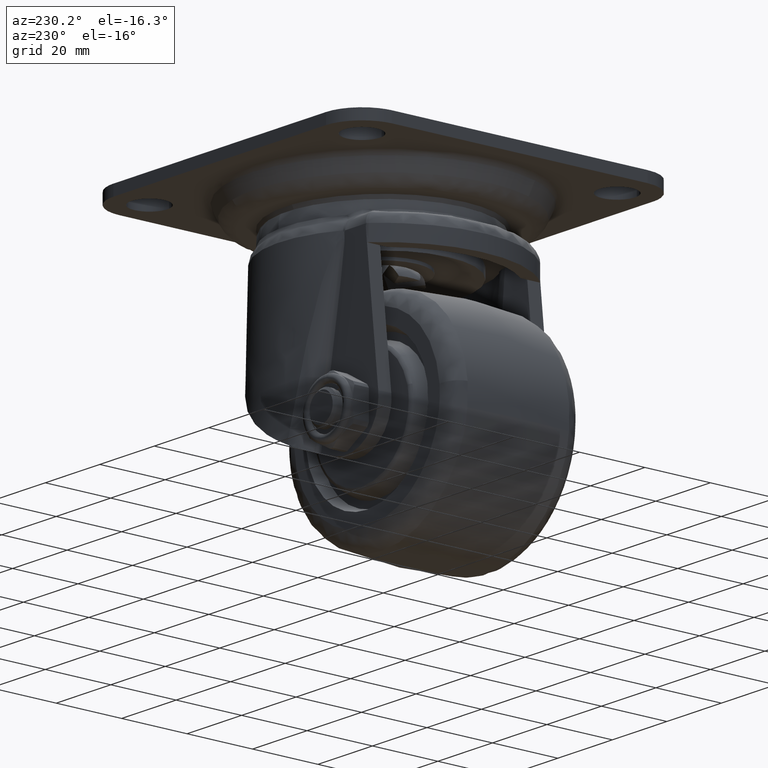
[diagram: clean part render]
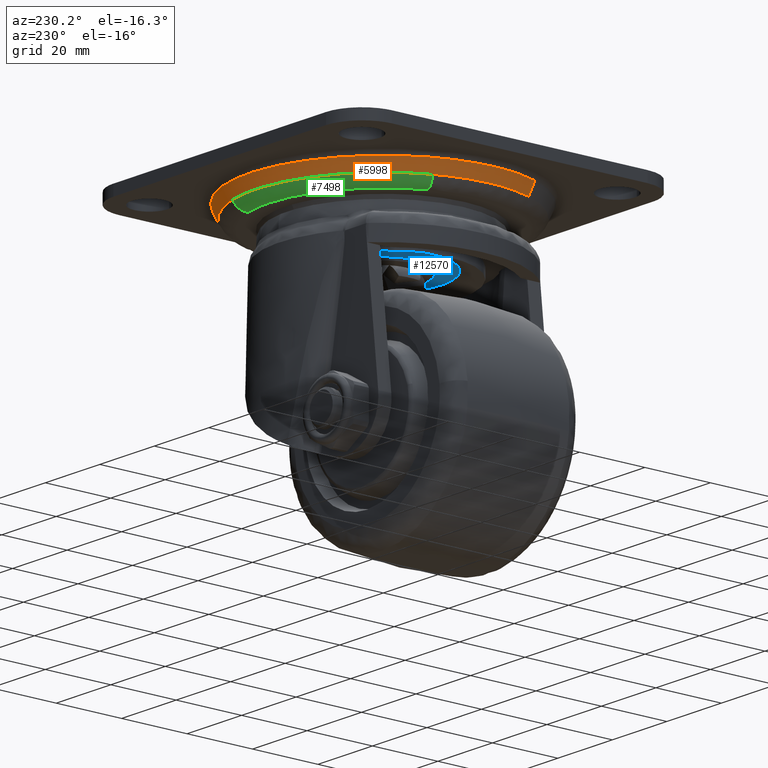
[diagram: same view with three faces highlighted in distinct colors, each labeled with its STEP entity id]
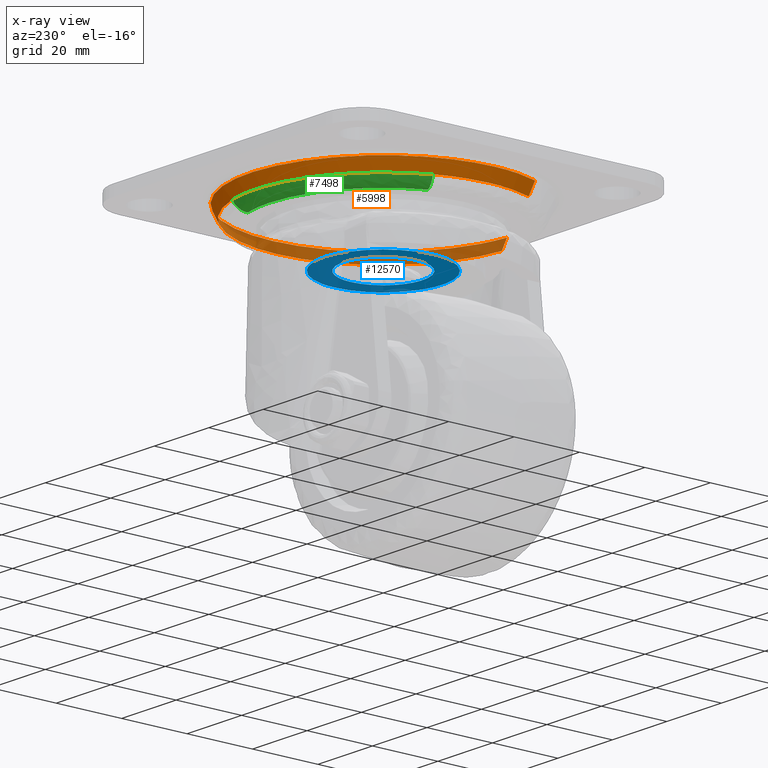
[diagram: x-ray of the same camera — body ghosted, the three highlighted faces saturated]
A machine part, auxiliary view with three faces highlighted in distinct colors.
The next image is the same camera in x-ray (body ghosted, the three faces saturated) — at least one of them is partly hidden behind the body in this view.
Their STEP definitions:

[orange] entity #5998 — the highlighted face is a freeform B-spline surface patch.
#5767=CARTESIAN_POINT('',(3.049689123807571,-38.749974387988630,-7.978875999988684));
#5768=VERTEX_POINT('',#5767);
#5769=CARTESIAN_POINT('',(-36.143641234190163,-14.300290806677619,-7.978875999995367));
#5770=VERTEX_POINT('',#5769);
#5786=CARTESIAN_POINT('',(3.184360529721399,-40.461136844316677,-4.345675039741233));
#5787=VERTEX_POINT('',#5786);
#5788=CARTESIAN_POINT('',(3.049689123807571,-38.749974387988630,-7.978875999988684));
#5789=CARTESIAN_POINT('',(3.184360529721399,-40.461136844316677,-4.345675039741233));
#5790=QUASI_UNIFORM_CURVE('',1,(#5788,#5789),.UNSPECIFIED.,.F.,.U.);
#5791=EDGE_CURVE('',#5768,#5787,#5790,.T.);
#5793=CARTESIAN_POINT('',(-37.739710467579357,-14.931778210949810,-4.345675039742618));
#5794=VERTEX_POINT('',#5793);
#5810=CARTESIAN_POINT('',(-36.143641234190163,-14.300290806677619,-7.978875999995367));
#5811=CARTESIAN_POINT('',(-37.739710467579357,-14.931778210949810,-4.345675039742618));
#5812=QUASI_UNIFORM_CURVE('',1,(#5810,#5811),.UNSPECIFIED.,.F.,.U.);
#5813=EDGE_CURVE('',#5770,#5794,#5812,.T.);
#5818=CARTESIAN_POINT('',(3.046322309503608,-38.707194956929378,-8.069706808861691));
#5819=CARTESIAN_POINT('',(41.753517266432993,-35.660872647425762,-8.069706808861691));
#5820=CARTESIAN_POINT('',(38.707194956929378,3.046322309503608,-8.069706808861691));
#5821=CARTESIAN_POINT('',(35.660872647425762,41.753517266432993,-8.069706808861691));
#5822=CARTESIAN_POINT('',(-3.046322309503608,38.707194956929378,-8.069706808861691));
#5823=CARTESIAN_POINT('',(-41.753517266432993,35.660872647425762,-8.069706808861691));
#5824=CARTESIAN_POINT('',(-38.707194956929378,-3.046322309503608,-8.069706808861691));
#5825=CARTESIAN_POINT('',(-38.249573053950812,-8.860959900507048,-8.069706808861691));
#5826=CARTESIAN_POINT('',(-36.103739158576715,-14.284503485125832,-8.069706808861689));
#5827=CARTESIAN_POINT('',(3.187811485290677,-40.504985392432502,-4.252574243537753));
#5828=CARTESIAN_POINT('',(43.692796877723175,-37.317173907141829,-4.252574243537753));
#5829=CARTESIAN_POINT('',(40.504985392432502,3.187811485290677,-4.252574243537753));
#5830=CARTESIAN_POINT('',(37.317173907141829,43.692796877723175,-4.252574243537753));
#5831=CARTESIAN_POINT('',(-3.187811485290677,40.504985392432502,-4.252574243537753));
#5832=CARTESIAN_POINT('',(-43.692796877723175,37.317173907141829,-4.252574243537753));
#5833=CARTESIAN_POINT('',(-40.504985392432502,-3.187811485290677,-4.252574243537753));
#5834=CARTESIAN_POINT('',(-40.026108829146793,-9.272515141754420,-4.252574243537752));
#5835=CARTESIAN_POINT('',(-37.780609751173586,-14.947960079437188,-4.252574243537753));
#5843=(BOUNDED_SURFACE()B_SPLINE_SURFACE(2,1,((#5818,#5827),(#5819,#5828),(#5820,#5829),(#5821,#5830),(#5822,#5831),(#5823,#5832),(#5824,#5833),(#5825,#5834),(#5826,#5835)),.UNSPECIFIED.,.F.,.F.,.U.)B_SPLINE_SURFACE_WITH_KNOTS((3,2,2,2,3),(2,2),(0.0,67.318377263810277,134.636754527620610,201.955131791430800,215.418807244192890),(0.0,4.221678654055508),.UNSPECIFIED.)GEOMETRIC_REPRESENTATION_ITEM()RATIONAL_B_SPLINE_SURFACE(((1.0,1.0),(0.707106781186548,0.707106781186548),(1.0,1.0),(0.707106781186548,0.707106781186548),(1.0,1.0),(0.707106781186548,0.707106781186548),(1.0,1.0),(0.941421356237310,0.941421356237310),(0.906274169979695,0.906274169979695)))REPRESENTATION_ITEM('')SURFACE());
#5844=CARTESIAN_POINT('',(-38.869797000000197,0.0,-7.978876000000199));
#5845=VERTEX_POINT('',#5844);
#5846=CARTESIAN_POINT('',(-36.143641234190149,-14.300290806677621,-7.978875999995367));
#5847=CARTESIAN_POINT('',(-38.869797000000197,-7.409997645519417,-7.978876000000200));
#5848=CARTESIAN_POINT('',(-38.869797000000197,0.0,-7.978876000000199));
#5856=(BOUNDED_CURVE()B_SPLINE_CURVE(2,(#5846,#5847,#5848),.UNSPECIFIED.,.F.,.U.)B_SPLINE_CURVE_WITH_KNOTS((3,3),(0.937532549939221,1.0),.UNSPECIFIED.)CURVE()GEOMETRIC_REPRESENTATION_ITEM()RATIONAL_B_SPLINE_CURVE((0.890203187501076,0.926814829922519,1.0))REPRESENTATION_ITEM(''));
#5857=EDGE_CURVE('',#5770,#5845,#5856,.T.);
#5858=ORIENTED_EDGE('',*,*,#5857,.F.);
#5859=ORIENTED_EDGE('',*,*,#5813,.T.);
#5860=CARTESIAN_POINT('',(-40.586250710279998,0.0,-4.345675039742931));
#5861=VERTEX_POINT('',#5860);
#5862=CARTESIAN_POINT('',(-37.739710467579357,-14.931778210949812,-4.345675039742618));
#5863=CARTESIAN_POINT('',(-40.586250710279998,-7.737216178475551,-4.345675039742932));
#5864=CARTESIAN_POINT('',(-40.586250710279998,0.0,-4.345675039742931));
#5872=(BOUNDED_CURVE()B_SPLINE_CURVE(2,(#5862,#5863,#5864),.UNSPECIFIED.,.F.,.U.)B_SPLINE_CURVE_WITH_KNOTS((3,3),(0.937532549939447,1.0),.UNSPECIFIED.)CURVE()GEOMETRIC_REPRESENTATION_ITEM()RATIONAL_B_SPLINE_CURVE((0.890203187501341,0.926814829922784,1.0))REPRESENTATION_ITEM(''));
#5873=EDGE_CURVE('',#5794,#5861,#5872,.T.);
#5874=ORIENTED_EDGE('',*,*,#5873,.T.);
#5875=CARTESIAN_POINT('',(-36.723537601635847,17.280785075132290,-4.345675037813947));
#5876=VERTEX_POINT('',#5875);
#5877=CARTESIAN_POINT('',(-40.586250710279998,0.0,-4.345675039742931));
#5878=CARTESIAN_POINT('',(-40.586250710279998,9.072101875295861,-4.345675039742931));
#5879=CARTESIAN_POINT('',(-36.723537601635861,17.280785075132297,-4.345675037813947));
#5887=(BOUNDED_CURVE()B_SPLINE_CURVE(2,(#5877,#5878,#5879),.UNSPECIFIED.,.F.,.U.)B_SPLINE_CURVE_WITH_KNOTS((3,3),(0.0,0.072331535363854),.UNSPECIFIED.)CURVE()GEOMETRIC_REPRESENTATION_ITEM()RATIONAL_B_SPLINE_CURVE((1.0,0.915258335142247,0.879552628112097))REPRESENTATION_ITEM(''));
#5888=EDGE_CURVE('',#5861,#5876,#5887,.T.);
#5889=ORIENTED_EDGE('',*,*,#5888,.T.);
#5890=CARTESIAN_POINT('',(12.924949974831859,38.473229847153888,-4.345675039582929));
#5891=VERTEX_POINT('',#5890);
#5892=CARTESIAN_POINT('',(-36.723537601635861,17.280785075132297,-4.345675037813947));
#5893=CARTESIAN_POINT('',(-25.756817915648391,40.586250710280005,-4.345675039742932));
#5894=CARTESIAN_POINT('',(0.0,40.586250710279998,-4.345675039742931));
#5895=CARTESIAN_POINT('',(6.635197403237333,40.586250710279991,-4.345675039742931));
#5896=CARTESIAN_POINT('',(12.924949974831858,38.473229847153888,-4.345675039582930));
#5904=(BOUNDED_CURVE()B_SPLINE_CURVE(2,(#5892,#5893,#5894,#5895,#5896),.UNSPECIFIED.,.F.,.U.)B_SPLINE_CURVE_WITH_KNOTS((3,2,3),(0.072331535363854,0.250000000000000,0.304134442289154),.UNSPECIFIED.)CURVE()GEOMETRIC_REPRESENTATION_ITEM()RATIONAL_B_SPLINE_CURVE((0.879552628112097,0.791848446044300,1.0,0.936577555797034,0.900621820758409))REPRESENTATION_ITEM(''));
#5905=EDGE_CURVE('',#5876,#5891,#5904,.T.);
#5906=ORIENTED_EDGE('',*,*,#5905,.T.);
#5907=CARTESIAN_POINT('',(40.586250710279998,0.0,-4.345675039742931));
#5908=VERTEX_POINT('',#5907);
#5909=CARTESIAN_POINT('',(12.924949974831856,38.473229847153888,-4.345675039582929));
#5910=CARTESIAN_POINT('',(40.586250710279998,29.180510476621155,-4.345675039742931));
#5911=CARTESIAN_POINT('',(40.586250710279998,0.0,-4.345675039742931));
#5919=(BOUNDED_CURVE()B_SPLINE_CURVE(2,(#5909,#5910,#5911),.UNSPECIFIED.,.F.,.U.)B_SPLINE_CURVE_WITH_KNOTS((3,3),(0.304134442289154,0.500000000000000),.UNSPECIFIED.)CURVE()GEOMETRIC_REPRESENTATION_ITEM()RATIONAL_B_SPLINE_CURVE((0.900621820758409,0.770529225389513,1.0))REPRESENTATION_ITEM(''));
#5920=EDGE_CURVE('',#5891,#5908,#5919,.T.);
#5921=ORIENTED_EDGE('',*,*,#5920,.T.);
#5922=CARTESIAN_POINT('',(40.586250710279998,0.0,-4.345675039742931));
#5923=CARTESIAN_POINT('',(40.586250710279984,-37.517544248621746,-4.345675039742932));
#5924=CARTESIAN_POINT('',(3.184360529721399,-40.461136844316677,-4.345675039741233));
#5932=(BOUNDED_CURVE()B_SPLINE_CURVE(2,(#5922,#5923,#5924),.UNSPECIFIED.,.F.,.U.)B_SPLINE_CURVE_WITH_KNOTS((3,3),(0.500000000000000,0.736331300632688),.UNSPECIFIED.)CURVE()GEOMETRIC_REPRESENTATION_ITEM()RATIONAL_B_SPLINE_CURVE((1.0,0.723120658605289,0.969723356171652))REPRESENTATION_ITEM(''));
#5933=EDGE_CURVE('',#5908,#5787,#5932,.T.);
#5934=ORIENTED_EDGE('',*,*,#5933,.T.);
#5935=ORIENTED_EDGE('',*,*,#5791,.F.);
#5936=CARTESIAN_POINT('',(38.869797000000197,0.0,-7.978876000000199));
#5937=VERTEX_POINT('',#5936);
#5938=CARTESIAN_POINT('',(38.869797000000197,0.0,-7.978876000000199));
#5939=CARTESIAN_POINT('',(38.869797000000197,-35.930870759368936,-7.978876000000200));
#5940=CARTESIAN_POINT('',(3.049689123807571,-38.749974387988630,-7.978875999988684));
#5948=(BOUNDED_CURVE()B_SPLINE_CURVE(2,(#5938,#5939,#5940),.UNSPECIFIED.,.F.,.U.)B_SPLINE_CURVE_WITH_KNOTS((3,3),(0.500000000000000,0.736331300632215),.UNSPECIFIED.)CURVE()GEOMETRIC_REPRESENTATION_ITEM()RATIONAL_B_SPLINE_CURVE((1.0,0.723120658605843,0.969723356170665))REPRESENTATION_ITEM(''));
#5949=EDGE_CURVE('',#5937,#5768,#5948,.T.);
#5950=ORIENTED_EDGE('',*,*,#5949,.F.);
#5951=CARTESIAN_POINT('',(10.511391295638710,37.421543231483092,-7.978876765649435));
#5952=VERTEX_POINT('',#5951);
#5953=CARTESIAN_POINT('',(10.511391295638711,37.421543231483078,-7.978876765649435));
#5954=CARTESIAN_POINT('',(38.869797219108335,29.455908815182308,-7.978876382824818));
#5955=CARTESIAN_POINT('',(38.869797000000197,0.0,-7.978876000000199));
#5963=(BOUNDED_CURVE()B_SPLINE_CURVE(2,(#5953,#5954,#5955),.UNSPECIFIED.,.F.,.U.)B_SPLINE_CURVE_WITH_KNOTS((3,3),(0.296082510805308,0.500000000000000),.UNSPECIFIED.)CURVE()GEOMETRIC_REPRESENTATION_ITEM()RATIONAL_B_SPLINE_CURVE((0.911925557297132,0.761095800869637,1.0))REPRESENTATION_ITEM(''));
#5964=EDGE_CURVE('',#5952,#5937,#5963,.T.);
#5965=ORIENTED_EDGE('',*,*,#5964,.F.);
#5966=CARTESIAN_POINT('',(-35.957564738023962,14.761936963217810,-7.978876765665404));
#5967=VERTEX_POINT('',#5966);
#5968=CARTESIAN_POINT('',(-35.957564738023962,14.761936963217801,-7.978876765665403));
#5969=CARTESIAN_POINT('',(-26.060377648686782,38.869797971040924,-7.978876765659392));
#5970=CARTESIAN_POINT('',(0.000000107969824,38.869798399052613,-7.978876765652157));
#5971=CARTESIAN_POINT('',(5.355465743940337,38.869798487009959,-7.978876765650670));
#5972=CARTESIAN_POINT('',(10.511391295638711,37.421543231483078,-7.978876765649435));
#5980=(BOUNDED_CURVE()B_SPLINE_CURVE(2,(#5968,#5969,#5970,#5971,#5972),.UNSPECIFIED.,.F.,.U.)B_SPLINE_CURVE_WITH_KNOTS((3,2,3),(0.064479943447676,0.250000000000000,0.296082510805308),.UNSPECIFIED.)CURVE()GEOMETRIC_REPRESENTATION_ITEM()RATIONAL_B_SPLINE_CURVE((0.887882137082589,0.782649733927745,1.0,0.946010980316910,0.911925557297132))REPRESENTATION_ITEM(''));
#5981=EDGE_CURVE('',#5967,#5952,#5980,.T.);
#5982=ORIENTED_EDGE('',*,*,#5981,.F.);
#5983=CARTESIAN_POINT('',(-38.869797000000197,0.0,-7.978876000000199));
#5984=CARTESIAN_POINT('',(-38.869797749525922,7.668231117046735,-7.978876382832801));
#5985=CARTESIAN_POINT('',(-35.957564738023962,14.761936963217801,-7.978876765665403));
#5993=(BOUNDED_CURVE()B_SPLINE_CURVE(2,(#5983,#5984,#5985),.UNSPECIFIED.,.F.,.U.)B_SPLINE_CURVE_WITH_KNOTS((3,3),(0.0,0.064479943447676),.UNSPECIFIED.)CURVE()GEOMETRIC_REPRESENTATION_ITEM()RATIONAL_B_SPLINE_CURVE((1.0,0.924457047258803,0.887882137082589))REPRESENTATION_ITEM(''));
#5994=EDGE_CURVE('',#5845,#5967,#5993,.T.);
#5995=ORIENTED_EDGE('',*,*,#5994,.F.);
#5996=EDGE_LOOP('',(#5858,#5859,#5874,#5889,#5906,#5921,#5934,#5935,#5950,#5965,#5982,#5995));
#5997=FACE_OUTER_BOUND('',#5996,.T.);
#5998=ADVANCED_FACE('',(#5997),#5843,.T.);

[blue] entity #12570 — the highlighted face is a freeform B-spline surface patch.
#9469=CARTESIAN_POINT('',(-1.416410815985546,11.916114316355101,-20.799995000000099));
#9470=VERTEX_POINT('',#9469);
#9471=CARTESIAN_POINT('',(11.999999999999879,0.0,-20.799995000000099));
#9472=VERTEX_POINT('',#9471);
#9473=CARTESIAN_POINT('',(-1.416410815985547,11.916114316355102,-20.799995000000102));
#9474=CARTESIAN_POINT('',(-0.710689435928250,12.000000000003119,-20.799995000000099));
#9475=CARTESIAN_POINT('',(-3.240075E-012,12.000000000003119,-20.799995000000099));
#9476=CARTESIAN_POINT('',(11.999999999999879,12.000000000003121,-20.799995000000106));
#9477=CARTESIAN_POINT('',(11.999999999999879,0.0,-20.799995000000099));
#9485=(BOUNDED_CURVE()B_SPLINE_CURVE(2,(#9473,#9474,#9475,#9476,#9477),.UNSPECIFIED.,.F.,.U.)B_SPLINE_CURVE_WITH_KNOTS((3,2,3),(0.229562473512784,0.250000000000000,0.500000000000000),.UNSPECIFIED.)CURVE()GEOMETRIC_REPRESENTATION_ITEM()RATIONAL_B_SPLINE_CURVE((0.956026754182279,0.976055948330296,1.0,0.707106781186548,1.0))REPRESENTATION_ITEM(''));
#9486=EDGE_CURVE('',#9470,#9472,#9485,.T.);
#9488=CARTESIAN_POINT('',(0.732582474537682,-11.977617581058020,-20.799995000000099));
#9489=VERTEX_POINT('',#9488);
#9490=CARTESIAN_POINT('',(11.999999999999879,0.0,-20.799995000000099));
#9491=CARTESIAN_POINT('',(11.999999999999881,-11.288472802640081,-20.799995000000102));
#9492=CARTESIAN_POINT('',(0.732582474537682,-11.977617581058018,-20.799995000000102));
#9500=(BOUNDED_CURVE()B_SPLINE_CURVE(2,(#9490,#9491,#9492),.UNSPECIFIED.,.F.,.U.)B_SPLINE_CURVE_WITH_KNOTS((3,3),(0.500000000000000,0.739332962238441),.UNSPECIFIED.)CURVE()GEOMETRIC_REPRESENTATION_ITEM()RATIONAL_B_SPLINE_CURVE((1.0,0.719603993287298,0.976072041665642))REPRESENTATION_ITEM(''));
#9501=EDGE_CURVE('',#9472,#9489,#9500,.T.);
#9568=CARTESIAN_POINT('',(-12.000000000006359,0.0,-20.799995000000099));
#9569=VERTEX_POINT('',#9568);
#9570=CARTESIAN_POINT('',(-12.000000000006359,0.0,-20.799995000000099));
#9571=CARTESIAN_POINT('',(-12.000000000006361,10.658094311237523,-20.799995000000106));
#9572=CARTESIAN_POINT('',(-1.416410815985546,11.916114316355102,-20.799995000000095));
#9580=(BOUNDED_CURVE()B_SPLINE_CURVE(2,(#9570,#9571,#9572),.UNSPECIFIED.,.F.,.U.)B_SPLINE_CURVE_WITH_KNOTS((3,3),(0.0,0.229562473512784),.UNSPECIFIED.)CURVE()GEOMETRIC_REPRESENTATION_ITEM()RATIONAL_B_SPLINE_CURVE((1.0,0.731050832856251,0.956026754182279))REPRESENTATION_ITEM(''));
#9581=EDGE_CURVE('',#9569,#9470,#9580,.T.);
#9615=CARTESIAN_POINT('',(0.732582474537682,-11.977617581058015,-20.799995000000102));
#9616=CARTESIAN_POINT('',(0.366633159702714,-12.000000000003126,-20.799995000000099));
#9617=CARTESIAN_POINT('',(-3.240075E-012,-12.000000000003119,-20.799995000000099));
#9618=CARTESIAN_POINT('',(-12.000000000006361,-12.000000000003121,-20.799995000000106));
#9619=CARTESIAN_POINT('',(-12.000000000006359,0.0,-20.799995000000099));
#9627=(BOUNDED_CURVE()B_SPLINE_CURVE(2,(#9615,#9616,#9617,#9618,#9619),.UNSPECIFIED.,.F.,.U.)B_SPLINE_CURVE_WITH_KNOTS((3,2,3),(0.739332962238440,0.750000000000000,1.0),.UNSPECIFIED.)CURVE()GEOMETRIC_REPRESENTATION_ITEM()RATIONAL_B_SPLINE_CURVE((0.976072041665641,0.987502787899249,1.0,0.707106781186548,1.0))REPRESENTATION_ITEM(''));
#9628=EDGE_CURVE('',#9489,#9569,#9627,.T.);
#10290=CARTESIAN_POINT('',(10.762289734720429,14.428205739581539,-20.799995000000099));
#10291=VERTEX_POINT('',#10290);
#10305=CARTESIAN_POINT('',(-18.000000000006491,0.0,-20.799995000000099));
#10306=VERTEX_POINT('',#10305);
#10307=CARTESIAN_POINT('',(-18.000000000006491,0.0,-20.799995000000099));
#10308=CARTESIAN_POINT('',(-18.000000000006484,18.000000000003247,-20.799995000000099));
#10309=CARTESIAN_POINT('',(-3.240075E-012,18.000000000003251,-20.799995000000099));
#10310=CARTESIAN_POINT('',(5.973849340490366,18.000000000003258,-20.799995000000099));
#10311=CARTESIAN_POINT('',(10.762289734720428,14.428205739581546,-20.799995000000102));
#10319=(BOUNDED_CURVE()B_SPLINE_CURVE(2,(#10307,#10308,#10309,#10310,#10311),.UNSPECIFIED.,.F.,.U.)B_SPLINE_CURVE_WITH_KNOTS((3,2,3),(0.0,0.250000000000000,0.353156604911299),.UNSPECIFIED.)CURVE()GEOMETRIC_REPRESENTATION_ITEM()RATIONAL_B_SPLINE_CURVE((1.0,0.707106781186547,1.0,0.879144519782648,0.858025367758470))REPRESENTATION_ITEM(''));
#10320=EDGE_CURVE('',#10306,#10291,#10319,.T.);
#10322=CARTESIAN_POINT('',(13.089045197286699,-12.356249296924940,-20.799995000000099));
#10323=VERTEX_POINT('',#10322);
#10324=CARTESIAN_POINT('',(13.089045197286705,-12.356249296924949,-20.799995000000102));
#10325=CARTESIAN_POINT('',(7.761262294838379,-18.000000000003254,-20.799995000000099));
#10326=CARTESIAN_POINT('',(-3.240075E-012,-18.000000000003251,-20.799995000000099));
#10327=CARTESIAN_POINT('',(-18.000000000006484,-18.000000000003247,-20.799995000000099));
#10328=CARTESIAN_POINT('',(-18.000000000006491,0.0,-20.799995000000099));
#10336=(BOUNDED_CURVE()B_SPLINE_CURVE(2,(#10324,#10325,#10326,#10327,#10328),.UNSPECIFIED.,.F.,.U.)B_SPLINE_CURVE_WITH_KNOTS((3,2,3),(0.620655485824677,0.750000000000000,1.0),.UNSPECIFIED.)CURVE()GEOMETRIC_REPRESENTATION_ITEM()RATIONAL_B_SPLINE_CURVE((0.853730296254971,0.848463475629309,1.0,0.707106781186547,1.0))REPRESENTATION_ITEM(''));
#10337=EDGE_CURVE('',#10323,#10306,#10336,.T.);
#10394=CARTESIAN_POINT('',(18.000000000000011,0.0,-20.799995000000099));
#10395=VERTEX_POINT('',#10394);
#10396=CARTESIAN_POINT('',(18.000000000000011,0.0,-20.799995000000099));
#10397=CARTESIAN_POINT('',(18.000000000000014,-7.154046901258503,-20.799995000000099));
#10398=CARTESIAN_POINT('',(13.089045197286705,-12.356249296924949,-20.799995000000102));
#10406=(BOUNDED_CURVE()B_SPLINE_CURVE(2,(#10396,#10397,#10398),.UNSPECIFIED.,.F.,.U.)B_SPLINE_CURVE_WITH_KNOTS((3,3),(0.500000000000000,0.620655485824677),.UNSPECIFIED.)CURVE()GEOMETRIC_REPRESENTATION_ITEM()RATIONAL_B_SPLINE_CURVE((1.0,0.858643305557238,0.853730296254971))REPRESENTATION_ITEM(''));
#10407=EDGE_CURVE('',#10395,#10323,#10406,.T.);
#10409=CARTESIAN_POINT('',(10.762289734720428,14.428205739581546,-20.799995000000102));
#10410=CARTESIAN_POINT('',(18.000000000000011,9.029451582710498,-20.799995000000106));
#10411=CARTESIAN_POINT('',(18.000000000000011,0.0,-20.799995000000099));
#10419=(BOUNDED_CURVE()B_SPLINE_CURVE(2,(#10409,#10410,#10411),.UNSPECIFIED.,.F.,.U.)B_SPLINE_CURVE_WITH_KNOTS((3,3),(0.353156604911299,0.500000000000000),.UNSPECIFIED.)CURVE()GEOMETRIC_REPRESENTATION_ITEM()RATIONAL_B_SPLINE_CURVE((0.858025367758470,0.827962261403900,1.0))REPRESENTATION_ITEM(''));
#10420=EDGE_CURVE('',#10291,#10395,#10419,.T.);
#12553=CARTESIAN_POINT('',(-19.798199930231831,-19.794489514320230,-20.799995000000099));
#12554=CARTESIAN_POINT('',(19.798200895820589,-19.794489514320230,-20.799995000000099));
#12555=CARTESIAN_POINT('',(-19.798199930231831,19.793203366756241,-20.799995000000099));
#12556=CARTESIAN_POINT('',(19.798200895820589,19.793203366756241,-20.799995000000099));
#12557=B_SPLINE_SURFACE_WITH_KNOTS('',1,1,((#12553,#12555),(#12554,#12556)),.UNSPECIFIED.,.F.,.F.,.U.,(2,2),(2,2),(0.0,39.596400826052417),(0.0,39.587692881076471),.UNSPECIFIED.);
#12558=ORIENTED_EDGE('',*,*,#10420,.T.);
#12559=ORIENTED_EDGE('',*,*,#10407,.T.);
#12560=ORIENTED_EDGE('',*,*,#10337,.T.);
#12561=ORIENTED_EDGE('',*,*,#10320,.T.);
#12562=EDGE_LOOP('',(#12558,#12559,#12560,#12561));
#12563=FACE_OUTER_BOUND('',#12562,.T.);
#12564=ORIENTED_EDGE('',*,*,#9501,.F.);
#12565=ORIENTED_EDGE('',*,*,#9486,.F.);
#12566=ORIENTED_EDGE('',*,*,#9581,.F.);
#12567=ORIENTED_EDGE('',*,*,#9628,.F.);
#12568=EDGE_LOOP('',(#12564,#12565,#12566,#12567));
#12569=FACE_BOUND('',#12568,.T.);
#12570=ADVANCED_FACE('',(#12563,#12569),#12557,.F.);

[green] entity #7498 — the highlighted face is a freeform B-spline surface patch.
#5951=CARTESIAN_POINT('',(10.511391295638710,37.421543231483092,-7.978876765649435));
#5952=VERTEX_POINT('',#5951);
#5966=CARTESIAN_POINT('',(-35.957564738023962,14.761936963217810,-7.978876765665404));
#5967=VERTEX_POINT('',#5966);
#5968=CARTESIAN_POINT('',(-35.957564738023962,14.761936963217801,-7.978876765665403));
#5969=CARTESIAN_POINT('',(-26.060377648686782,38.869797971040924,-7.978876765659392));
#5970=CARTESIAN_POINT('',(0.000000107969824,38.869798399052613,-7.978876765652157));
#5971=CARTESIAN_POINT('',(5.355465743940337,38.869798487009959,-7.978876765650670));
#5972=CARTESIAN_POINT('',(10.511391295638711,37.421543231483078,-7.978876765649435));
#5980=(BOUNDED_CURVE()B_SPLINE_CURVE(2,(#5968,#5969,#5970,#5971,#5972),.UNSPECIFIED.,.F.,.U.)B_SPLINE_CURVE_WITH_KNOTS((3,2,3),(0.064479943447676,0.250000000000000,0.296082510805308),.UNSPECIFIED.)CURVE()GEOMETRIC_REPRESENTATION_ITEM()RATIONAL_B_SPLINE_CURVE((0.887882137082589,0.782649733927745,1.0,0.946010980316910,0.911925557297132))REPRESENTATION_ITEM(''));
#5981=EDGE_CURVE('',#5967,#5952,#5980,.T.);
#7378=CARTESIAN_POINT('',(9.434687907938677,33.588377739858132,-10.642517281503840));
#7379=VERTEX_POINT('',#7378);
#7395=CARTESIAN_POINT('',(10.511391295638711,37.421543231483085,-7.978876765649435));
#7396=CARTESIAN_POINT('',(10.188843486302030,36.273242644210569,-10.503542535370180));
#7397=CARTESIAN_POINT('',(9.434687907938677,33.588377739858132,-10.642517281503839));
#7405=(BOUNDED_CURVE()B_SPLINE_CURVE(2,(#7395,#7396,#7397),.UNSPECIFIED.,.F.,.U.)B_SPLINE_CURVE_WITH_KNOTS((3,3),(-1.650386320337326,-0.362842883061849),.UNSPECIFIED.)CURVE()GEOMETRIC_REPRESENTATION_ITEM()RATIONAL_B_SPLINE_CURVE((0.870811178556056,0.745890026168248,0.868270215927966))REPRESENTATION_ITEM(''));
#7406=EDGE_CURVE('',#5952,#7379,#7405,.T.);
#7413=CARTESIAN_POINT('',(-32.274357565707490,13.249841455792980,-10.642517281670109));
#7414=VERTEX_POINT('',#7413);
#7415=CARTESIAN_POINT('',(-35.957564738023962,14.761936963217803,-7.978876765665404));
#7416=CARTESIAN_POINT('',(-34.854187133888168,14.308958827556582,-10.503542539392649));
#7417=CARTESIAN_POINT('',(-32.274357565707490,13.249841455792984,-10.642517281670109));
#7425=(BOUNDED_CURVE()B_SPLINE_CURVE(2,(#7415,#7416,#7417),.UNSPECIFIED.,.F.,.U.)B_SPLINE_CURVE_WITH_KNOTS((3,3),(-1.650386320332573,-0.362842881268674),.UNSPECIFIED.)CURVE()GEOMETRIC_REPRESENTATION_ITEM()RATIONAL_B_SPLINE_CURVE((0.910046830025831,0.779497175071467,0.907391381025180))REPRESENTATION_ITEM(''));
#7426=EDGE_CURVE('',#5967,#7414,#7425,.T.);
#7461=CARTESIAN_POINT('',(-36.046201562490893,14.798325723799902,-7.761942183233840));
#7462=CARTESIAN_POINT('',(-22.868415319313208,46.897169061533248,-7.761942183233835));
#7463=CARTESIAN_POINT('',(10.537302292401735,37.513788821044784,-7.761942183233837));
#7464=CARTESIAN_POINT('',(-34.945719629990087,14.346536370570250,-10.652225639428472));
#7465=CARTESIAN_POINT('',(-22.170248056385390,45.465409680501637,-10.652225639428472));
#7466=CARTESIAN_POINT('',(10.215600967784109,36.368501799730211,-10.652225639428471));
#7467=CARTESIAN_POINT('',(-32.054369093257932,13.159527887857612,-10.648289103946974));
#7468=CARTESIAN_POINT('',(-20.335918722320006,41.703677540647469,-10.648289103946977));
#7469=CARTESIAN_POINT('',(9.370379188007224,33.359432640125526,-10.648289103946979));
#7477=(BOUNDED_SURFACE()B_SPLINE_SURFACE(2,2,((#7461,#7464,#7467),(#7462,#7465,#7468),(#7463,#7466,#7469)),.UNSPECIFIED.,.F.,.F.,.U.)B_SPLINE_SURFACE_WITH_KNOTS((3,3),(3,3),(0.0,59.330367336652422),(0.0,5.672199532567110),.UNSPECIFIED.)GEOMETRIC_REPRESENTATION_ITEM()RATIONAL_B_SPLINE_SURFACE(((0.923733591186990,0.765943052741755,0.920812864480969),(0.674822710726032,0.559550688688047,0.672689008182516),(0.883907850313236,0.732920274493161,0.881113047473216)))REPRESENTATION_ITEM('')SURFACE());
#7478=CARTESIAN_POINT('',(-32.274357565707490,13.249841455792984,-10.642517281670109));
#7479=CARTESIAN_POINT('',(-23.390959950777045,34.888285351722963,-10.642517281741197));
#7480=CARTESIAN_POINT('',(0.0,34.888285351722963,-10.642517281741201));
#7481=CARTESIAN_POINT('',(4.806894335469927,34.888285351722956,-10.642517281741197));
#7482=CARTESIAN_POINT('',(9.434687907938677,33.588377739858132,-10.642517281503842));
#7490=(BOUNDED_CURVE()B_SPLINE_CURVE(2,(#7478,#7479,#7480,#7481,#7482),.UNSPECIFIED.,.F.,.U.)B_SPLINE_CURVE_WITH_KNOTS((3,2,3),(0.064479943448224,0.250000000000000,0.296082510808600),.UNSPECIFIED.)CURVE()GEOMETRIC_REPRESENTATION_ITEM()RATIONAL_B_SPLINE_CURVE((0.887882137081967,0.782649733928386,1.0,0.946010980313054,0.911925557292263))REPRESENTATION_ITEM(''));
#7491=EDGE_CURVE('',#7414,#7379,#7490,.T.);
#7492=ORIENTED_EDGE('',*,*,#7491,.F.);
#7493=ORIENTED_EDGE('',*,*,#7426,.F.);
#7494=ORIENTED_EDGE('',*,*,#5981,.T.);
#7495=ORIENTED_EDGE('',*,*,#7406,.T.);
#7496=EDGE_LOOP('',(#7492,#7493,#7494,#7495));
#7497=FACE_OUTER_BOUND('',#7496,.T.);
#7498=ADVANCED_FACE('',(#7497),#7477,.T.);